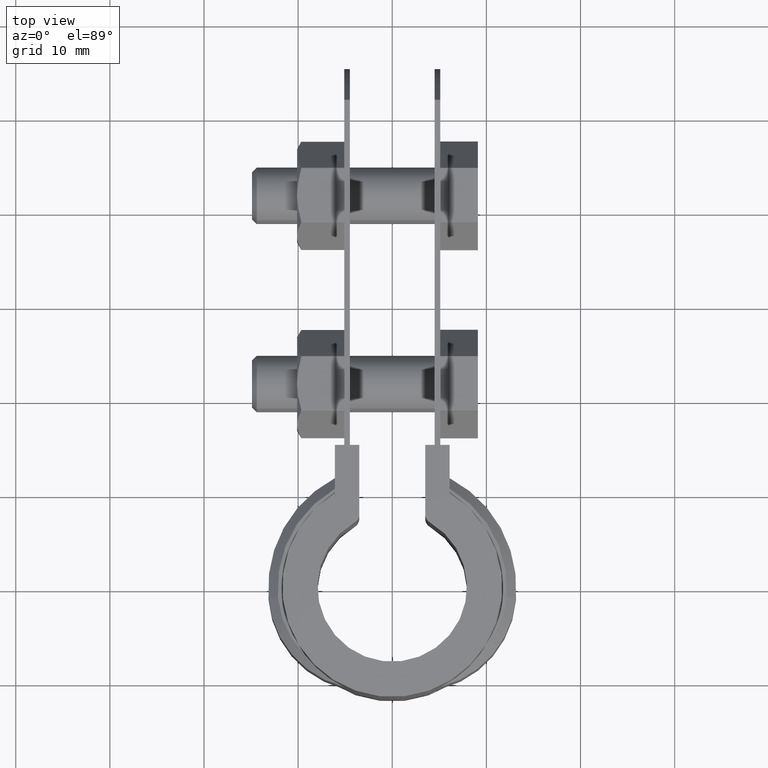
[diagram: clean part render]
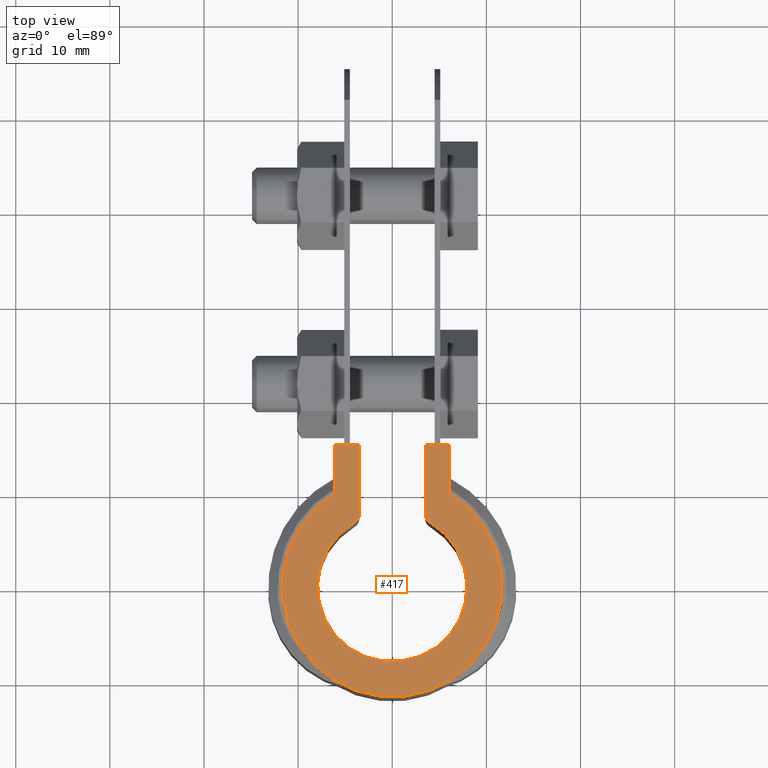
[diagram: same view with one face highlighted and labeled with its STEP entity id]
A machine part, top view. The second image highlights one B-rep face of the part: STEP entity #417.
In plain terms, the highlighted planar face has unit normal (0, 0, 1).
Its self-contained STEP definition (entity closure, byte-faithful):
#417 = ADVANCED_FACE( '', ( #724 ), #725, .T. );
#724 = FACE_OUTER_BOUND( '', #1566, .T. );
#725 = PLANE( '', #1567 );
#1566 = EDGE_LOOP( '', ( #3711, #3712, #3713, #3714, #3715, #3716, #3717, #3718, #3719, #3720 ) );
#1567 = AXIS2_PLACEMENT_3D( '', #3721, #3722, #3723 );
#3711 = ORIENTED_EDGE( '', *, *, #4648, .T. );
#3712 = ORIENTED_EDGE( '', *, *, #4617, .T. );
#3713 = ORIENTED_EDGE( '', *, *, #4606, .T. );
#3714 = ORIENTED_EDGE( '', *, *, #4613, .F. );
#3715 = ORIENTED_EDGE( '', *, *, #4608, .T. );
#3716 = ORIENTED_EDGE( '', *, *, #4614, .T. );
#3717 = ORIENTED_EDGE( '', *, *, #4522, .T. );
#3718 = ORIENTED_EDGE( '', *, *, #4655, .T. );
#3719 = ORIENTED_EDGE( '', *, *, #4632, .T. );
#3720 = ORIENTED_EDGE( '', *, *, #4645, .T. );
#3721 = CARTESIAN_POINT( '', ( 0.000000000000000, 0.000000000000000, 1.50000000000000 ) );
#3722 = DIRECTION( '', ( 0.000000000000000, 0.000000000000000, 1.00000000000000 ) );
#3723 = DIRECTION( '', ( 0.000000000000000, 1.00000000000000, 0.000000000000000 ) );
#4522 = EDGE_CURVE( '', #5126, #5127, #5128, .T. );
#4606 = EDGE_CURVE( '', #5277, #5275, #5278, .F. );
#4608 = EDGE_CURVE( '', #5280, #5281, #5282, .F. );
#4613 = EDGE_CURVE( '', #5280, #5275, #5289, .F. );
#4614 = EDGE_CURVE( '', #5281, #5126, #5290, .T. );
#4617 = EDGE_CURVE( '', #5294, #5277, #5295, .T. );
#4632 = EDGE_CURVE( '', #5322, #5320, #5323, .T. );
#4645 = EDGE_CURVE( '', #5320, #5344, #5346, .T. );
#4648 = EDGE_CURVE( '', #5344, #5294, #5350, .T. );
#4655 = EDGE_CURVE( '', #5127, #5322, #5361, .T. );
#5126 = VERTEX_POINT( '', #6668 );
#5127 = VERTEX_POINT( '', #6669 );
#5128 = LINE( '', #6670, #6671 );
#5275 = VERTEX_POINT( '', #7202 );
#5277 = VERTEX_POINT( '', #7205 );
#5278 = CIRCLE( '', #7206, 1.00000000000000 );
#5280 = VERTEX_POINT( '', #7209 );
#5281 = VERTEX_POINT( '', #7210 );
#5282 = CIRCLE( '', #7211, 1.00000000000000 );
#5289 = CIRCLE( '', #7220, 7.94000000000000 );
#5290 = LINE( '', #7221, #7222 );
#5294 = VERTEX_POINT( '', #7228 );
#5295 = LINE( '', #7229, #7230 );
#5320 = VERTEX_POINT( '', #7276 );
#5322 = VERTEX_POINT( '', #7279 );
#5323 = CIRCLE( '', #7280, 11.6850000000000 );
#5344 = VERTEX_POINT( '', #7321 );
#5346 = LINE( '', #7324, #7325 );
#5350 = LINE( '', #7333, #7334 );
#5361 = LINE( '', #7355, #7356 );
#6668 = CARTESIAN_POINT( '', ( -3.50000000000000, 15.1000000000000, 1.50000000000000 ) );
#6669 = CARTESIAN_POINT( '', ( -6.10000000000003, 15.1000000000000, 1.50000000000000 ) );
#6670 = CARTESIAN_POINT( '', ( -5.09999999999999, 15.1000000000000, 1.50000000000000 ) );
#6671 = VECTOR( '', #8402, 1000.00000000000 );
#7202 = CARTESIAN_POINT( '', ( 3.99664429530202, 6.86078963216552, 1.50000000000000 ) );
#7205 = CARTESIAN_POINT( '', ( 3.50000000000000, 7.72486893092692, 1.50000000000000 ) );
#7206 = AXIS2_PLACEMENT_3D( '', #8492, #8493, #8494 );
#7209 = CARTESIAN_POINT( '', ( -3.99664429530201, 6.86078963216552, 1.50000000000000 ) );
#7210 = CARTESIAN_POINT( '', ( -3.50000000000000, 7.72486893092692, 1.50000000000000 ) );
#7211 = AXIS2_PLACEMENT_3D( '', #8496, #8497, #8498 );
#7220 = AXIS2_PLACEMENT_3D( '', #8507, #8508, #8509 );
#7221 = CARTESIAN_POINT( '', ( -3.50000000000000, 7.12139206897079, 1.50000000000000 ) );
#7222 = VECTOR( '', #8510, 1000.00000000000 );
#7228 = CARTESIAN_POINT( '', ( 3.50000000000002, 15.1000000000000, 1.50000000000000 ) );
#7229 = CARTESIAN_POINT( '', ( 3.50000000000000, 15.1000000000000, 1.50000000000000 ) );
#7230 = VECTOR( '', #8513, 1000.00000000000 );
#7276 = CARTESIAN_POINT( '', ( 6.10000000000001, 9.96640481818795, 1.50000000000000 ) );
#7279 = CARTESIAN_POINT( '', ( -6.10000000000000, 9.96640481818793, 1.50000000000000 ) );
#7280 = AXIS2_PLACEMENT_3D( '', #8537, #8538, #8539 );
#7321 = CARTESIAN_POINT( '', ( 6.10000000000001, 15.1000000000000, 1.50000000000000 ) );
#7324 = CARTESIAN_POINT( '', ( 6.10000000000001, 9.96640481818793, 1.50000000000000 ) );
#7325 = VECTOR( '', #8556, 1000.00000000000 );
#7333 = CARTESIAN_POINT( '', ( 6.09999999999999, 15.1000000000000, 1.50000000000000 ) );
#7334 = VECTOR( '', #8558, 1000.00000000000 );
#7355 = CARTESIAN_POINT( '', ( -6.10000000000000, 15.1000000000000, 1.50000000000000 ) );
#7356 = VECTOR( '', #8563, 1000.00000000000 );
#8402 = DIRECTION( '', ( -1.00000000000000, 0.000000000000000, 0.000000000000000 ) );
#8492 = CARTESIAN_POINT( '', ( 4.50000000000000, 7.72486893092692, 1.50000000000000 ) );
#8493 = DIRECTION( '', ( 0.000000000000000, 0.000000000000000, -1.00000000000000 ) );
#8494 = DIRECTION( '', ( -1.00000000000000, 0.000000000000000, 0.000000000000000 ) );
#8496 = CARTESIAN_POINT( '', ( -4.50000000000000, 7.72486893092692, 1.50000000000000 ) );
#8497 = DIRECTION( '', ( 0.000000000000000, 0.000000000000000, -1.00000000000000 ) );
#8498 = DIRECTION( '', ( -1.00000000000000, 0.000000000000000, 0.000000000000000 ) );
#8507 = CARTESIAN_POINT( '', ( 0.000000000000000, 0.000000000000000, 1.50000000000000 ) );
#8508 = DIRECTION( '', ( 0.000000000000000, 0.000000000000000, -1.00000000000000 ) );
#8509 = DIRECTION( '', ( -1.00000000000000, 0.000000000000000, 0.000000000000000 ) );
#8510 = DIRECTION( '', ( 6.07153216591882E-017, 1.00000000000000, 0.000000000000000 ) );
#8513 = DIRECTION( '', ( -6.07153216591882E-017, -1.00000000000000, 0.000000000000000 ) );
#8537 = CARTESIAN_POINT( '', ( 0.000000000000000, 0.000000000000000, 1.50000000000000 ) );
#8538 = DIRECTION( '', ( 0.000000000000000, 0.000000000000000, 1.00000000000000 ) );
#8539 = DIRECTION( '', ( 1.00000000000000, 0.000000000000000, 0.000000000000000 ) );
#8556 = DIRECTION( '', ( 6.07153216591882E-017, 1.00000000000000, 0.000000000000000 ) );
#8558 = DIRECTION( '', ( -1.00000000000000, 0.000000000000000, 0.000000000000000 ) );
#8563 = DIRECTION( '', ( -6.07153216591882E-017, -1.00000000000000, 0.000000000000000 ) );